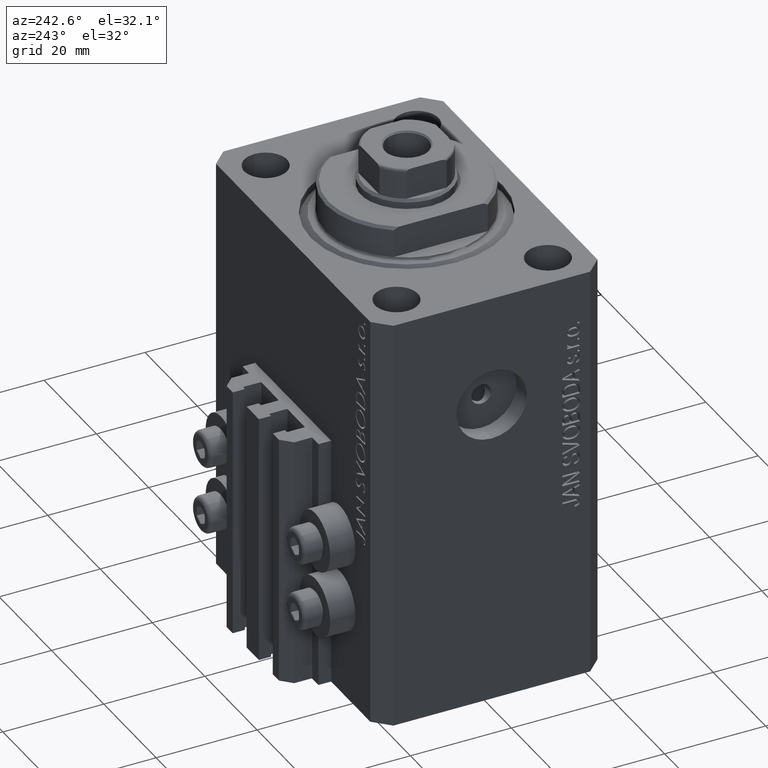
[diagram: clean part render]
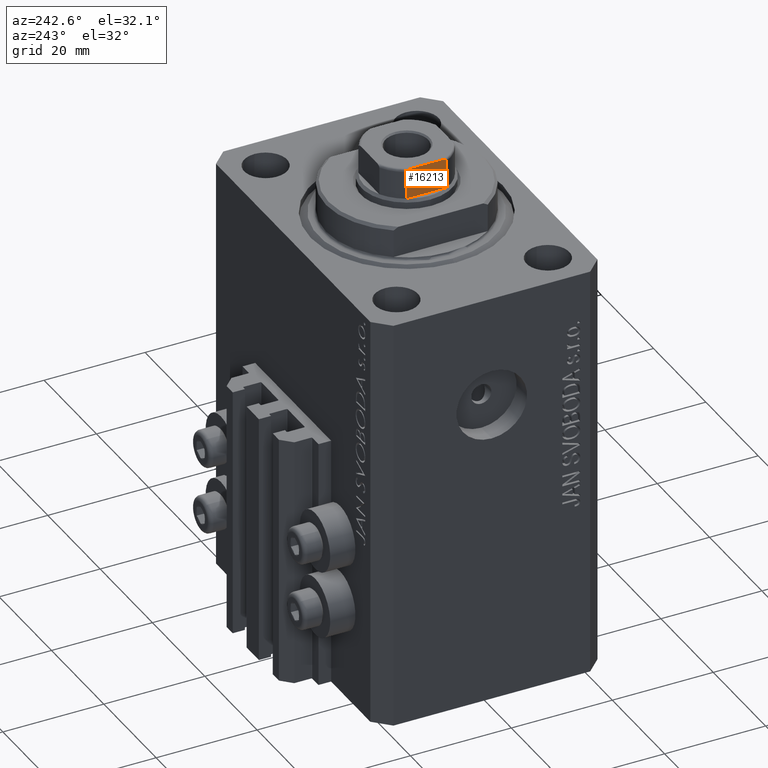
[diagram: same view with one face highlighted and labeled with its STEP entity id]
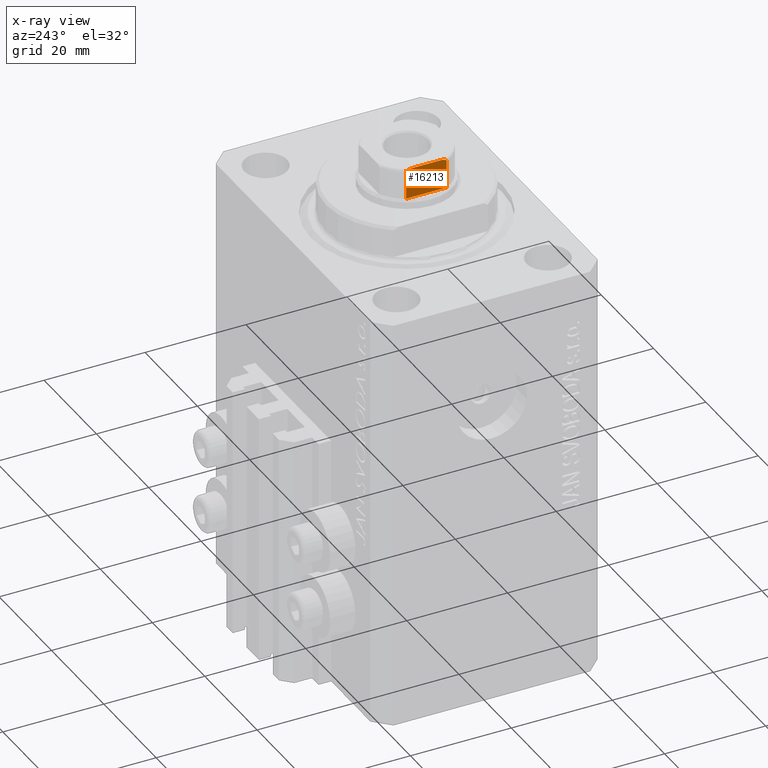
[diagram: x-ray of the same camera — body ghosted, the highlighted face saturated]
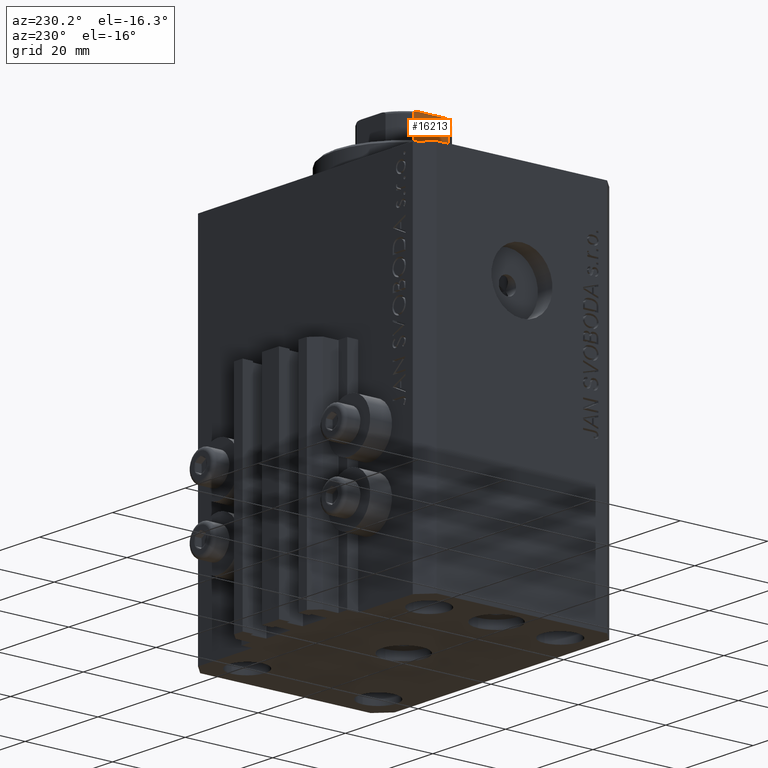
[diagram: same view with one face highlighted and labeled with its STEP entity id]
A machine part, auxiliary view. The second image highlights one B-rep face of the part: STEP entity #16213.
The next image is the same camera in x-ray: the body ghosted, the highlighted face saturated — about 0% of this face is hidden behind the body in this view.
A second angle (auxiliary view) of the same face is appended — the face is thin or edge-on in the first view.
In plain terms, the highlighted planar face has unit normal (1, 0, 0).
Its self-contained STEP definition (entity closure, byte-faithful):
#525 = CARTESIAN_POINT ( 'NONE',  ( -7.499999999999997335, 3.598393151503783471, 89.99012191927413085 ) ) ;
#2151 = CARTESIAN_POINT ( 'NONE',  ( -7.499999999999998224, -2.783882181415016088, 90.10000000000000853 ) ) ;
#2178 = CARTESIAN_POINT ( 'NONE',  ( -7.499999999999998224, -3.976018255615934915, 89.71726199300998417 ) ) ;
#2985 = VERTEX_POINT ( 'NONE', #4658 ) ;
#3120 = LINE ( 'NONE', #39828, #32237 ) ;
#4101 = EDGE_CURVE ( 'NONE', #5156, #6595, #20735, .T. ) ;
#4167 = ORIENTED_EDGE ( 'NONE', *, *, #7295, .F. ) ;
#4311 = EDGE_CURVE ( 'NONE', #12031, #5675, #11050, .T. ) ;
#4658 = CARTESIAN_POINT ( 'NONE',  ( -7.500000000000001776, 3.999999999999995559, 84.09999999999999432 ) ) ;
#5156 = VERTEX_POINT ( 'NONE', #13452 ) ;
#5675 = VERTEX_POINT ( 'NONE', #2151 ) ;
#6595 = VERTEX_POINT ( 'NONE', #14358 ) ;
#7266 = CARTESIAN_POINT ( 'NONE',  ( -7.499999999999998224, 3.255843148148210631, 90.08262378726873010 ) ) ;
#7295 = EDGE_CURVE ( 'NONE', #2985, #6595, #15367, .T. ) ;
#7498 = CARTESIAN_POINT ( 'NONE',  ( -7.499999999999998224, 3.975735230428945055, 89.71773041319777064 ) ) ;
#7561 = EDGE_CURVE ( 'NONE', #5156, #5675, #3120, .T. ) ;
#7743 = CARTESIAN_POINT ( 'NONE',  ( -7.499999999999996447, 3.020030562295406451, 90.10000000000000853 ) ) ;
#8193 = DIRECTION ( 'NONE',  ( -0.000000000000000000, -0.000000000000000000, 1.000000000000000000 ) ) ;
#8718 = ORIENTED_EDGE ( 'NONE', *, *, #31946, .T. ) ;
#8926 = CARTESIAN_POINT ( 'NONE',  ( -7.499999999999997335, -3.597188386589931230, 89.99052843393241119 ) ) ;
#9228 = PLANE ( 'NONE',  #33693 ) ;
#9637 = LINE ( 'NONE', #38919, #43442 ) ;
#9993 = VECTOR ( 'NONE', #8193, 1000.000000000000000 ) ;
#11050 = B_SPLINE_CURVE_WITH_KNOTS ( 'NONE', 3,
 ( #34364, #27382, #2178, #37725, #44912, #45147, #8926, #26910, #16802, #34839 ),
 .UNSPECIFIED., .F., .F.,
 ( 4, 2, 2, 2, 4 ),
 ( 0.000000000000000000, 0.0001779688448868745748, 0.0003559376897737483365, 0.0007118753795475175981, 0.001423750759095054712 ),
 .UNSPECIFIED. ) ;
#12031 = VERTEX_POINT ( 'NONE', #25844 ) ;
#13452 = CARTESIAN_POINT ( 'NONE',  ( -7.499999999999998224, 2.783882181415015644, 90.10000000000000853 ) ) ;
#13943 = ORIENTED_EDGE ( 'NONE', *, *, #4101, .T. ) ;
#14358 = CARTESIAN_POINT ( 'NONE',  ( -7.500000000000001776, 3.999999999999998224, 89.60000000000000853 ) ) ;
#15367 = LINE ( 'NONE', #25943, #9993 ) ;
#16213 = ADVANCED_FACE ( 'NONE', ( #37790 ), #9228, .F. ) ;
#16802 = CARTESIAN_POINT ( 'NONE',  ( -7.499999999999998224, -3.020011215871901022, 90.10000000000003695 ) ) ;
#17118 = CARTESIAN_POINT ( 'NONE',  ( -7.500000000000002665, -3.999999999999996447, 84.09999999999999432 ) ) ;
#18991 = CARTESIAN_POINT ( 'NONE',  ( -7.499999999999998224, 4.000000000000207834, 89.66034186205213530 ) ) ;
#19233 = CARTESIAN_POINT ( 'NONE',  ( -7.499999999999998224, 3.904072061442346087, 89.81287056890808174 ) ) ;
#20735 = B_SPLINE_CURVE_WITH_KNOTS ( 'NONE', 3,
 ( #29326, #7743, #7266, #525, #22596, #29571, #19233, #7498, #18991, #26203 ),
 .UNSPECIFIED., .F., .F.,
 ( 4, 2, 2, 2, 4 ),
 ( 0.000000000000000000, 0.0007049202178654105470, 0.001057380326798120591, 0.001233610381264463578, 0.001409840435730805698 ),
 .UNSPECIFIED. ) ;
#22596 = CARTESIAN_POINT ( 'NONE',  ( -7.499999999999998224, 3.710689790367156959, 89.94812118173427962 ) ) ;
#22985 = CARTESIAN_POINT ( 'NONE',  ( -7.499999999999998224, 7.499999999999999112, 84.10000000000000853 ) ) ;
#23395 = VECTOR ( 'NONE', #37641, 1000.000000000000000 ) ;
#25177 = DIRECTION ( 'NONE',  ( 5.782411586589357392E-17, -1.000000000000000000, 0.000000000000000000 ) ) ;
#25844 = CARTESIAN_POINT ( 'NONE',  ( -7.500000000000002665, -3.999999999999996447, 89.60000000000000853 ) ) ;
#25943 = CARTESIAN_POINT ( 'NONE',  ( -7.500000000000001776, 3.999999999999998224, -0.001000000000001000089 ) ) ;
#26203 = CARTESIAN_POINT ( 'NONE',  ( -7.500000000000001776, 3.999999999999998224, 89.60000000000000853 ) ) ;
#26910 = CARTESIAN_POINT ( 'NONE',  ( -7.499999999999997335, -3.254991323038182838, 90.08269028443157822 ) ) ;
#27382 = CARTESIAN_POINT ( 'NONE',  ( -7.500000000000004441, -3.999999999999996447, 89.66026396800437226 ) ) ;
#29326 = CARTESIAN_POINT ( 'NONE',  ( -7.499999999999998224, 2.783882181415015644, 90.10000000000000853 ) ) ;
#29571 = CARTESIAN_POINT ( 'NONE',  ( -7.499999999999999112, 3.857502111569848235, 89.85173359969212470 ) ) ;
#30109 = DIRECTION ( 'NONE',  ( -5.782411586589357392E-17, 1.000000000000000000, 0.000000000000000000 ) ) ;
#30678 = EDGE_LOOP ( 'NONE', ( #43721, #34061, #37053, #13943, #4167, #8718 ) ) ;
#31946 = EDGE_CURVE ( 'NONE', #2985, #45622, #45308, .T. ) ;
#32237 = VECTOR ( 'NONE', #25177, 1000.000000000000000 ) ;
#33693 = AXIS2_PLACEMENT_3D ( 'NONE', #41875, #33706, #30109 ) ;
#33706 = DIRECTION ( 'NONE',  ( 1.000000000000000000, 5.782411586589357392E-17, -0.000000000000000000 ) ) ;
#34061 = ORIENTED_EDGE ( 'NONE', *, *, #4311, .T. ) ;
#34364 = CARTESIAN_POINT ( 'NONE',  ( -7.500000000000002665, -3.999999999999996447, 89.60000000000000853 ) ) ;
#34839 = CARTESIAN_POINT ( 'NONE',  ( -7.499999999999998224, -2.783882181415016088, 90.10000000000000853 ) ) ;
#37053 = ORIENTED_EDGE ( 'NONE', *, *, #7561, .F. ) ;
#37641 = DIRECTION ( 'NONE',  ( 5.782411586589357392E-17, -1.000000000000000000, 0.000000000000000000 ) ) ;
#37725 = CARTESIAN_POINT ( 'NONE',  ( -7.499999999999998224, -3.904208668232361124, 89.81278134537495816 ) ) ;
#37790 = FACE_OUTER_BOUND ( 'NONE', #30678, .T. ) ;
#38662 = EDGE_CURVE ( 'NONE', #45622, #12031, #9637, .T. ) ;
#38919 = CARTESIAN_POINT ( 'NONE',  ( -7.500000000000002665, -3.999999999999996447, -0.001000000000001000089 ) ) ;
#39386 = DIRECTION ( 'NONE',  ( -0.000000000000000000, -0.000000000000000000, 1.000000000000000000 ) ) ;
#39828 = CARTESIAN_POINT ( 'NONE',  ( -7.499999999999998224, 7.499999999999999112, 90.10000000000000853 ) ) ;
#41875 = CARTESIAN_POINT ( 'NONE',  ( -7.499999999999998224, 7.499999999999999112, 90.10000000000000853 ) ) ;
#43442 = VECTOR ( 'NONE', #39386, 1000.000000000000000 ) ;
#43721 = ORIENTED_EDGE ( 'NONE', *, *, #38662, .T. ) ;
#44912 = CARTESIAN_POINT ( 'NONE',  ( -7.499999999999997335, -3.858352854028600731, 89.85117951603156428 ) ) ;
#45147 = CARTESIAN_POINT ( 'NONE',  ( -7.499999999999997335, -3.708875323752959918, 89.94930352055466471 ) ) ;
#45308 = LINE ( 'NONE', #22985, #23395 ) ;
#45622 = VERTEX_POINT ( 'NONE', #17118 ) ;